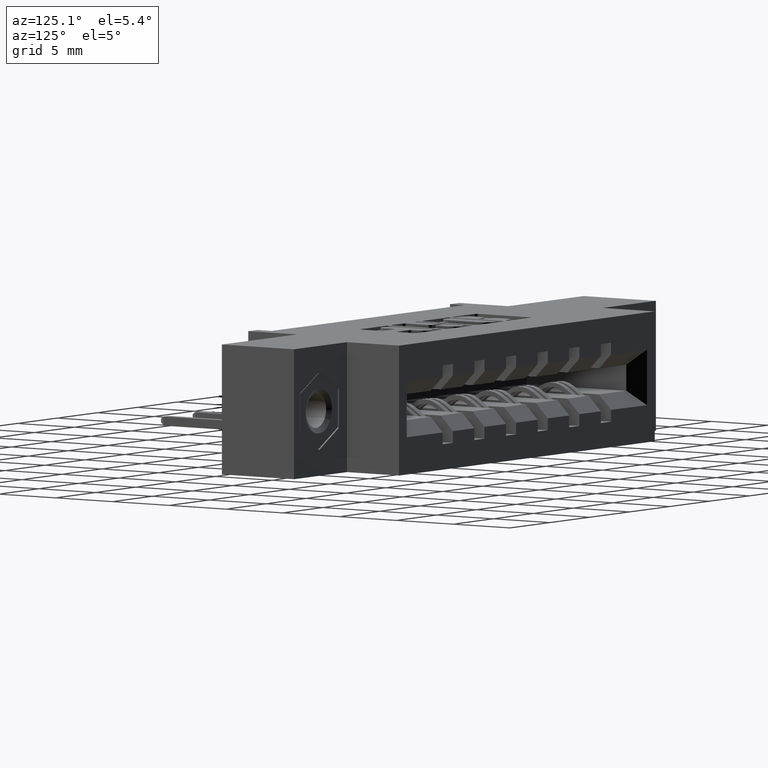
[diagram: clean part render]
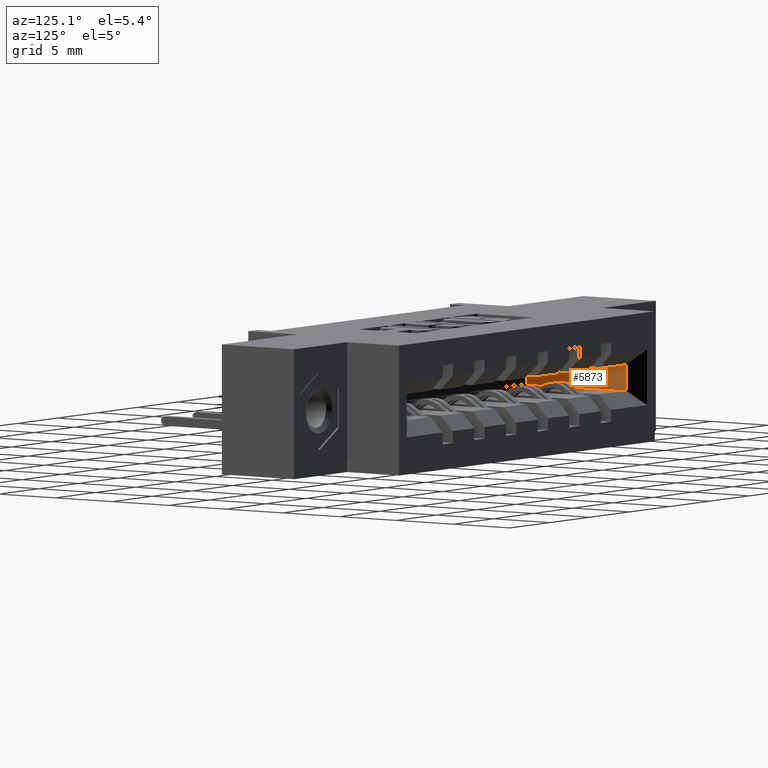
[diagram: same view with one face highlighted and labeled with its STEP entity id]
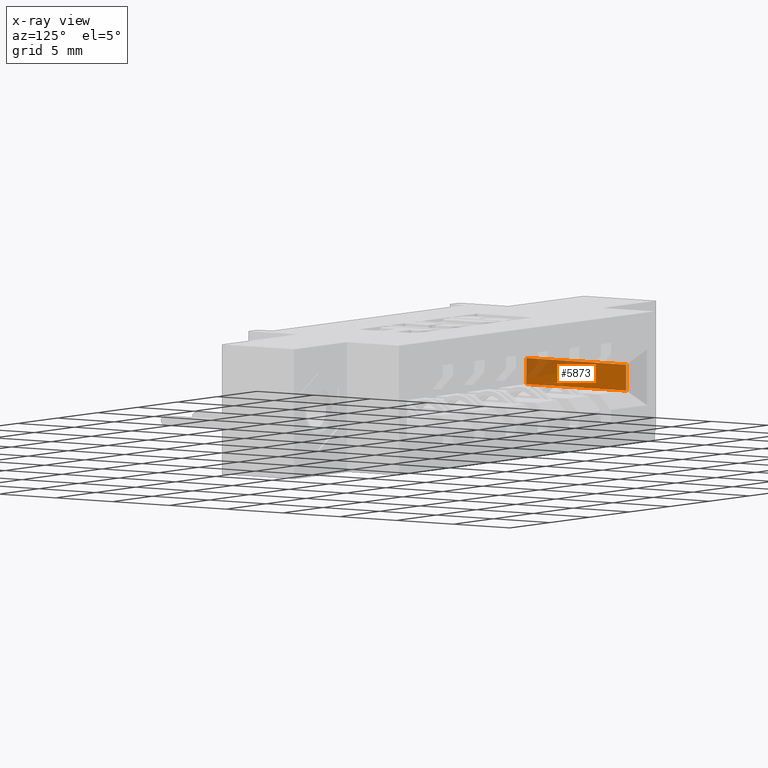
[diagram: x-ray of the same camera — body ghosted, the highlighted face saturated]
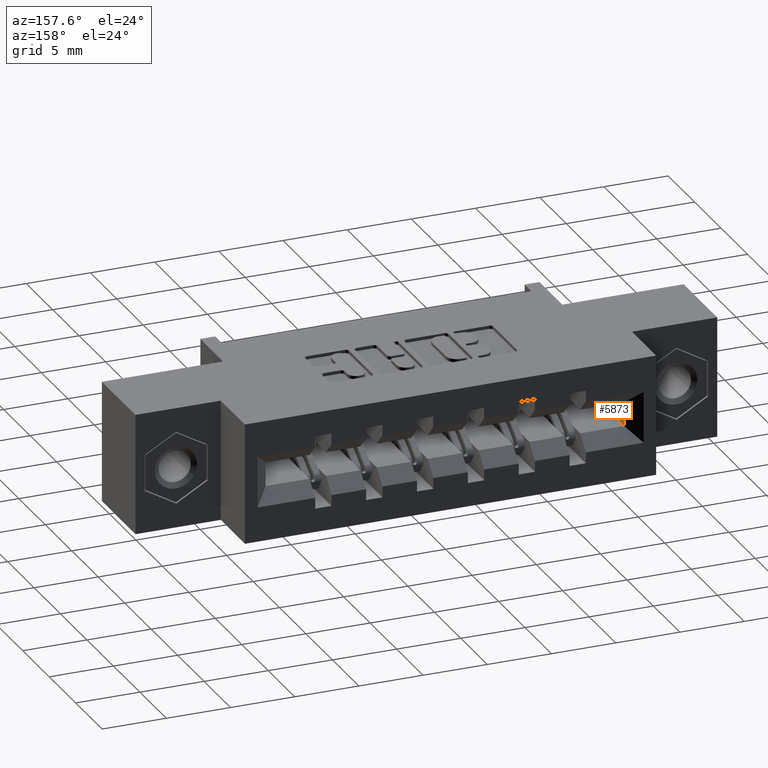
[diagram: same view with one face highlighted and labeled with its STEP entity id]
A machine part, auxiliary view. The second image highlights one B-rep face of the part: STEP entity #5873.
The next image is the same camera in x-ray: the body ghosted, the highlighted face saturated — about 36% of this face is hidden behind the body in this view.
A second angle (auxiliary view) of the same face is appended — the face is thin or edge-on in the first view.
In plain terms, the highlighted planar face has unit normal (-1, 0, 0).
Its self-contained STEP definition (entity closure, byte-faithful):
#251 = ORIENTED_EDGE ( 'NONE', *, *, #4041, .T. ) ;
#539 = CARTESIAN_POINT ( 'NONE',  ( 0.3419999999999999200, 0.2119999999999999400, -0.1480000000000003000 ) ) ;
#1307 = DIRECTION ( 'NONE',  ( -0.0000000000000000000, 0.0000000000000000000, 1.000000000000000000 ) ) ;
#1669 = ORIENTED_EDGE ( 'NONE', *, *, #1867, .F. ) ;
#1823 = VERTEX_POINT ( 'NONE', #5290 ) ;
#1867 = EDGE_CURVE ( 'NONE', #1823, #6194, #5918, .T. ) ;
#2123 = DIRECTION ( 'NONE',  ( -0.0000000000000000000, 1.000000000000000000, -0.0000000000000000000 ) ) ;
#2303 = EDGE_CURVE ( 'NONE', #4829, #1823, #2372, .T. ) ;
#2372 = LINE ( 'NONE', #7368, #8341 ) ;
#2678 = DIRECTION ( 'NONE',  ( 0.0000000000000000000, 0.0000000000000000000, 1.000000000000000000 ) ) ;
#2698 = ORIENTED_EDGE ( 'NONE', *, *, #7390, .T. ) ;
#2921 = CARTESIAN_POINT ( 'NONE',  ( 0.3419999999999999200, 0.2119999999999999400, -0.1480000000000003000 ) ) ;
#3336 = VECTOR ( 'NONE', #3996, 39.37007874015748100 ) ;
#3562 = LINE ( 'NONE', #4005, #3336 ) ;
#3586 = AXIS2_PLACEMENT_3D ( 'NONE', #539, #5844, #1307 ) ;
#3876 = VECTOR ( 'NONE', #2123, 39.37007874015748100 ) ;
#3996 = DIRECTION ( 'NONE',  ( -0.0000000000000000000, 1.000000000000000000, -0.0000000000000000000 ) ) ;
#4005 = CARTESIAN_POINT ( 'NONE',  ( 0.3419999999999999200, 0.2119999999999999400, -0.2220000000000002800 ) ) ;
#4041 = EDGE_CURVE ( 'NONE', #4829, #6231, #3562, .T. ) ;
#4725 = CARTESIAN_POINT ( 'NONE',  ( 0.3419999999999999200, 0.5579999999999999400, -0.1480000000000003000 ) ) ;
#4829 = VERTEX_POINT ( 'NONE', #5716 ) ;
#4998 = EDGE_LOOP ( 'NONE', ( #251, #2698, #1669, #8287 ) ) ;
#5290 = CARTESIAN_POINT ( 'NONE',  ( 0.3419999999999999200, 0.2119999999999999400, -0.1480000000000003000 ) ) ;
#5716 = CARTESIAN_POINT ( 'NONE',  ( 0.3419999999999999200, 0.2119999999999999400, -0.2220000000000002800 ) ) ;
#5844 = DIRECTION ( 'NONE',  ( -1.000000000000000000, 0.0000000000000000000, -0.0000000000000000000 ) ) ;
#5873 = ADVANCED_FACE ( 'NONE', ( #9240 ), #8063, .F. ) ;
#5918 = LINE ( 'NONE', #2921, #3876 ) ;
#6074 = VECTOR ( 'NONE', #2678, 39.37007874015748100 ) ;
#6194 = VERTEX_POINT ( 'NONE', #4725 ) ;
#6231 = VERTEX_POINT ( 'NONE', #6323 ) ;
#6323 = CARTESIAN_POINT ( 'NONE',  ( 0.3419999999999999200, 0.5579999999999999400, -0.2220000000000002800 ) ) ;
#7224 = DIRECTION ( 'NONE',  ( -0.0000000000000000000, -0.0000000000000000000, 1.000000000000000000 ) ) ;
#7368 = CARTESIAN_POINT ( 'NONE',  ( 0.3419999999999999200, 0.2119999999999999400, -0.1480000000000003000 ) ) ;
#7390 = EDGE_CURVE ( 'NONE', #6231, #6194, #7824, .T. ) ;
#7824 = LINE ( 'NONE', #7935, #6074 ) ;
#7935 = CARTESIAN_POINT ( 'NONE',  ( 0.3419999999999999200, 0.5579999999999999400, -0.1480000000000003000 ) ) ;
#8063 = PLANE ( 'NONE',  #3586 ) ;
#8287 = ORIENTED_EDGE ( 'NONE', *, *, #2303, .F. ) ;
#8341 = VECTOR ( 'NONE', #7224, 39.37007874015748100 ) ;
#9240 = FACE_OUTER_BOUND ( 'NONE', #4998, .T. ) ;